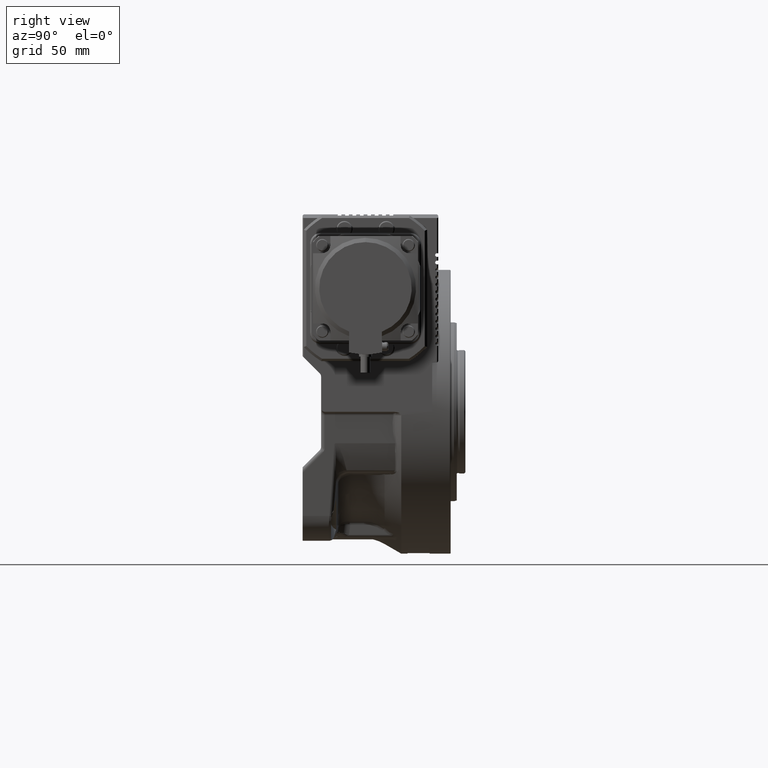
[diagram: clean part render]
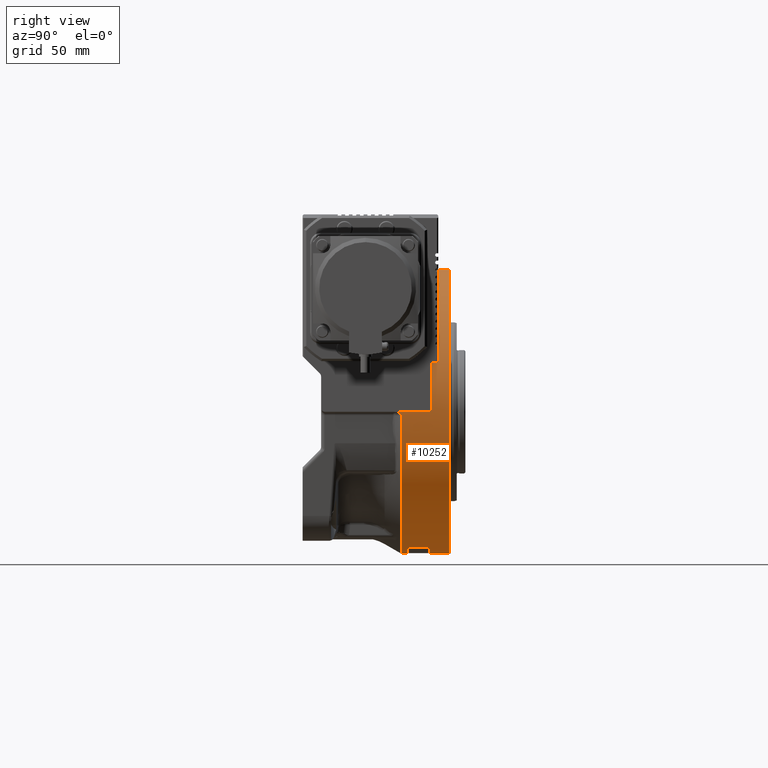
[diagram: same view with one face highlighted and labeled with its STEP entity id]
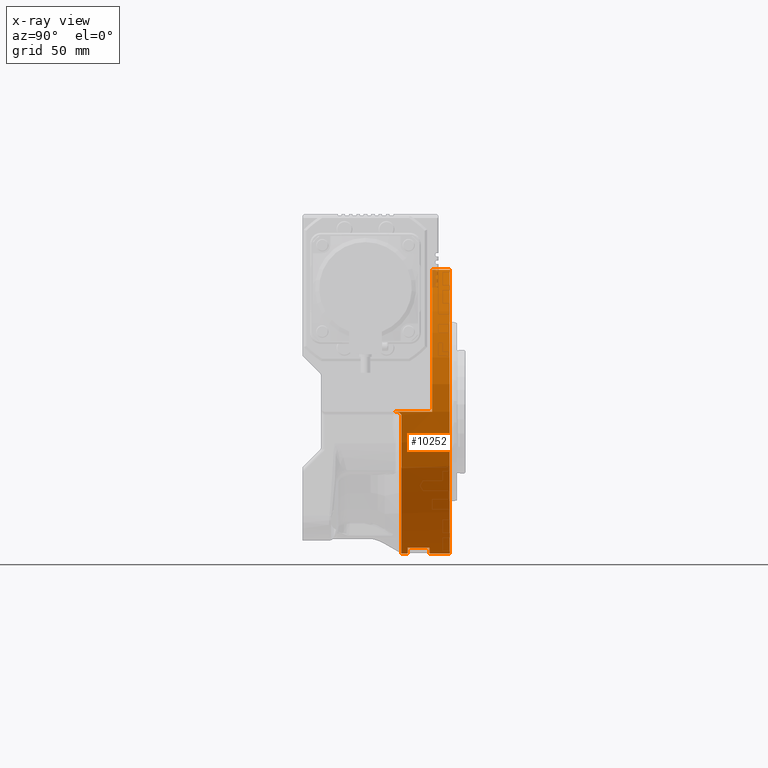
[diagram: x-ray of the same camera — body ghosted, the highlighted face saturated]
A machine part, right view. The second image highlights one B-rep face of the part: STEP entity #10252.
The next image is the same camera in x-ray: the body ghosted, the highlighted face saturated — about 1% of this face is hidden behind the body in this view.
In plain terms, the highlighted cylindrical surface (partial cylindrical patch) has radius 115 mm, axis along (0, 1, 0).
Its self-contained STEP definition (entity closure, byte-faithful):
#1220 = CARTESIAN_POINT ( 'NONE',  ( 114.9999275339971234, 24.80868549263489697, -0.1291300344715314574 ) ) ;
#1252 = CARTESIAN_POINT ( 'NONE',  ( 0.000000000000000000, 29.00000000000000000, 0.000000000000000000 ) ) ;
#1585 = DIRECTION ( 'NONE',  ( 0.000000000000000000, -1.000000000000000000, 0.000000000000000000 ) ) ;
#1642 = CARTESIAN_POINT ( 'NONE',  ( 114.9917705809030366, 28.09699931490313674, -1.375828423274158441 ) ) ;
#2494 = CARTESIAN_POINT ( 'NONE',  ( 114.9900208604516365, 28.27243824454428633, -1.518573705160049858 ) ) ;
#2855 = CIRCLE ( 'NONE', #77876, 115.0000000000000000 ) ;
#3755 = DIRECTION ( 'NONE',  ( 8.881784197001250351E-16, 0.000000000000000000, 1.000000000000000000 ) ) ;
#7158 = VERTEX_POINT ( 'NONE', #79390 ) ;
#7228 = CARTESIAN_POINT ( 'NONE',  ( -1.896133584952655067E-13, 52.00000000000000000, 1.877717866360475099E-15 ) ) ;
#7948 = ORIENTED_EDGE ( 'NONE', *, *, #75021, .T. ) ;
#8186 = CARTESIAN_POINT ( 'NONE',  ( 0.000000000000000000, 54.00000000000000000, 0.000000000000000000 ) ) ;
#8199 = CARTESIAN_POINT ( 'NONE',  ( 114.9998642314695445, 25.15786009822274494, -0.1832626952012586519 ) ) ;
#8609 = CARTESIAN_POINT ( 'NONE',  ( 114.9994668502941977, 25.89205429790269264, -0.3520355174097362094 ) ) ;
#9025 = CARTESIAN_POINT ( 'NONE',  ( 114.9956525597421546, 27.54085925575986238, -1.002720122626485688 ) ) ;
#9451 = CARTESIAN_POINT ( 'NONE',  ( 114.9946028565829153, 27.73989547257291477, -1.119329705294657806 ) ) ;
#9459 = ORIENTED_EDGE ( 'NONE', *, *, #17634, .T. ) ;
#9668 = EDGE_CURVE ( 'NONE', #54556, #10898, #13548, .T. ) ;
#9703 = VECTOR ( 'NONE', #14752, 1000.000000000000000 ) ;
#9787 = CARTESIAN_POINT ( 'NONE',  ( -1.915261329192304893E-13, 34.00000000000000000, 8.302670301599750378E-15 ) ) ;
#9883 = CARTESIAN_POINT ( 'NONE',  ( 115.0000016434536150, 23.67035120397557790, -0.01122488868556218398 ) ) ;
#10252 = ADVANCED_FACE ( 'NONE', ( #67273 ), #33372, .T. ) ;
#10369 = ORIENTED_EDGE ( 'NONE', *, *, #26696, .T. ) ;
#10390 = ORIENTED_EDGE ( 'NONE', *, *, #9668, .F. ) ;
#10898 = VERTEX_POINT ( 'NONE', #73602 ) ;
#11191 = CARTESIAN_POINT ( 'NONE',  ( 115.0000000000000000, 23.06776437421590131, 0.000000000000000000 ) ) ;
#13548 = CIRCLE ( 'NONE', #53841, 115.0000000000000000 ) ;
#14695 = CARTESIAN_POINT ( 'NONE',  ( 114.9971202071243539, 27.17475039052024499, -0.8149236201228353682 ) ) ;
#14752 = DIRECTION ( 'NONE',  ( 0.000000000000000000, 1.000000000000000000, 0.000000000000000000 ) ) ;
#15142 = CARTESIAN_POINT ( 'NONE',  ( 114.9963293345299178, 27.38193080818751568, -0.9188723445971186399 ) ) ;
#15240 = CARTESIAN_POINT ( 'NONE',  ( 1.408343819019454046E-14, 52.00000000000000000, -115.0000000000000000 ) ) ;
#15560 = CARTESIAN_POINT ( 'NONE',  ( 114.9999917827316978, 24.11462769120914729, -0.04489955185535822457 ) ) ;
#15971 = CARTESIAN_POINT ( 'NONE',  ( 114.9813512699077336, 28.73913290657947428, -2.070974538470678805 ) ) ;
#16396 = CARTESIAN_POINT ( 'NONE',  ( 114.9814583607447105, 28.73541576566718092, -2.065014909322182568 ) ) ;
#17634 = EDGE_CURVE ( 'NONE', #42257, #64277, #22173, .T. ) ;
#19703 = DIRECTION ( 'NONE',  ( 0.000000000000000000, -1.000000000000000000, 0.000000000000000000 ) ) ;
#19893 = ORIENTED_EDGE ( 'NONE', *, *, #58931, .T. ) ;
#19922 = LINE ( 'NONE', #39492, #69057 ) ;
#20304 = CARTESIAN_POINT ( 'NONE',  ( 0.000000000000000000, 55.00000000000000000, 0.000000000000000000 ) ) ;
#20351 = DIRECTION ( 'NONE',  ( 1.062652457758361879E-16, 1.000000000000000000, -3.569418019577375155E-16 ) ) ;
#20611 = AXIS2_PLACEMENT_3D ( 'NONE', #20304, #61623, #46842 ) ;
#21637 = CARTESIAN_POINT ( 'NONE',  ( 114.9987114792780574, 26.51155513196366442, -0.5444198292347696144 ) ) ;
#22082 = CARTESIAN_POINT ( 'NONE',  ( 114.9999420415806526, 24.71808371466553211, -0.1156689458843403878 ) ) ;
#22173 = LINE ( 'NONE', #36913, #27069 ) ;
#22488 = CARTESIAN_POINT ( 'NONE',  ( 114.9821090193140236, 28.71223618095029551, -2.028540534487333513 ) ) ;
#22906 = CARTESIAN_POINT ( 'NONE',  ( 114.9914419176345888, 28.13085810421661037, -1.402966588517368329 ) ) ;
#23442 = DIRECTION ( 'NONE',  ( 0.000000000000000000, 1.000000000000000000, 0.000000000000000000 ) ) ;
#24586 = ORIENTED_EDGE ( 'NONE', *, *, #74286, .F. ) ;
#26696 = EDGE_CURVE ( 'NONE', #62513, #84732, #53902, .T. ) ;
#27000 = CARTESIAN_POINT ( 'NONE',  ( 115.0000000000000000, 54.00000000000000000, -1.741031561343995111E-14 ) ) ;
#27069 = VECTOR ( 'NONE', #23442, 1000.000000000000000 ) ;
#27755 = CARTESIAN_POINT ( 'NONE',  ( 114.9913886467529522, 28.13624978625454887, -1.407330777721342852 ) ) ;
#28108 = DIRECTION ( 'NONE',  ( 0.000000000000000000, 0.000000000000000000, -1.000000000000000000 ) ) ;
#28593 = CARTESIAN_POINT ( 'NONE',  ( 114.9997645457651316, 25.45877981379495480, -0.2436674953311029068 ) ) ;
#29030 = CARTESIAN_POINT ( 'NONE',  ( 115.0000000000000000, 23.06776437421590131, 0.000000000000000000 ) ) ;
#29103 = ORIENTED_EDGE ( 'NONE', *, *, #73874, .T. ) ;
#29439 = CARTESIAN_POINT ( 'NONE',  ( 114.9967045129142349, 27.28840332434917215, -0.8708679105104036866 ) ) ;
#29797 = ORIENTED_EDGE ( 'NONE', *, *, #58831, .T. ) ;
#30238 = VECTOR ( 'NONE', #61273, 1000.000000000000000 ) ;
#33246 = AXIS2_PLACEMENT_3D ( 'NONE', #1252, #69055, #76012 ) ;
#33372 = CYLINDRICAL_SURFACE ( 'NONE', #20611, 115.0000000000000000 ) ;
#34713 = CARTESIAN_POINT ( 'NONE',  ( 114.9965152912755570, 27.33631884590646877, -0.8952865028953578275 ) ) ;
#35128 = CARTESIAN_POINT ( 'NONE',  ( 114.9986296085963176, 26.55944158783998077, -0.5614563386237237941 ) ) ;
#35545 = CARTESIAN_POINT ( 'NONE',  ( 114.9930690798004349, 27.94958472727548582, -1.263795285210995489 ) ) ;
#35982 = CARTESIAN_POINT ( 'NONE',  ( 114.9829983175777244, 28.67847647214546924, -1.977767501732348832 ) ) ;
#35995 = CARTESIAN_POINT ( 'NONE',  ( 1.408343819019455781E-14, 29.00000000000000000, -115.0000000000000000 ) ) ;
#36913 = CARTESIAN_POINT ( 'NONE',  ( 1.408343819019455781E-14, 55.00000000000000000, -115.0000000000000000 ) ) ;
#38012 = CARTESIAN_POINT ( 'NONE',  ( 115.0000000000000000, 59.00000000000000000, 0.000000000000000000 ) ) ;
#39492 = CARTESIAN_POINT ( 'NONE',  ( 32.52702708006000165, 34.00000000000000000, -110.3040910815780080 ) ) ;
#41217 = CARTESIAN_POINT ( 'NONE',  ( 114.9989734530902581, 26.34370708912819126, -0.4868248634215697201 ) ) ;
#42068 = CARTESIAN_POINT ( 'NONE',  ( 114.9847018309115754, 28.60633955970806142, -1.877248864561903430 ) ) ;
#42257 = VERTEX_POINT ( 'NONE', #15240 ) ;
#42481 = CARTESIAN_POINT ( 'NONE',  ( 114.9999591030426700, 24.59092456836424034, -0.09786698287737879975 ) ) ;
#42710 = DIRECTION ( 'NONE',  ( -1.062652457758361879E-16, -1.000000000000000000, 3.620292471603770148E-16 ) ) ;
#42909 = CARTESIAN_POINT ( 'NONE',  ( 114.9761695630407843, 28.91481890827085621, -2.357463667445496736 ) ) ;
#45156 = CARTESIAN_POINT ( 'NONE',  ( 114.9625733810223949, 29.00000000000000000, -2.933721461394899865 ) ) ;
#45708 = CIRCLE ( 'NONE', #33246, 115.0000000000000000 ) ;
#45838 = LINE ( 'NONE', #38012, #47882 ) ;
#46842 = DIRECTION ( 'NONE',  ( 0.000000000000000000, 0.000000000000000000, 1.000000000000000000 ) ) ;
#47784 = EDGE_CURVE ( 'NONE', #10898, #7158, #74334, .T. ) ;
#47882 = VECTOR ( 'NONE', #74093, 1000.000000000000000 ) ;
#48226 = CARTESIAN_POINT ( 'NONE',  ( 0.000000000000000000, 55.00000000000000000, 115.0000000000000000 ) ) ;
#49017 = CARTESIAN_POINT ( 'NONE',  ( 114.9978534621346427, 26.94004432208153332, -0.7071648076490903989 ) ) ;
#51100 = AXIS2_PLACEMENT_3D ( 'NONE', #9787, #70640, #56304 ) ;
#51177 = AXIS2_PLACEMENT_3D ( 'NONE', #7228, #42710, #73759 ) ;
#52763 = EDGE_LOOP ( 'NONE', ( #7948, #29103, #10369, #29797, #24586, #9459, #52813, #66390, #10390, #77805, #19893 ) ) ;
#52813 = ORIENTED_EDGE ( 'NONE', *, *, #63132, .T. ) ;
#53841 = AXIS2_PLACEMENT_3D ( 'NONE', #8186, #19703, #3755 ) ;
#53902 = CIRCLE ( 'NONE', #51100, 115.0000000000000000 ) ;
#54276 = CARTESIAN_POINT ( 'NONE',  ( 114.9625733810223949, 29.00000000000000000, -2.933721461394899865 ) ) ;
#54556 = VERTEX_POINT ( 'NONE', #27000 ) ;
#55908 = EDGE_CURVE ( 'NONE', #54556, #65586, #45838, .T. ) ;
#55982 = CARTESIAN_POINT ( 'NONE',  ( 114.9963866215403954, 27.36808633168796945, -0.9116638898389561874 ) ) ;
#56304 = DIRECTION ( 'NONE',  ( -5.551115123125792563E-17, -3.620292471603771135E-16, -1.000000000000000000 ) ) ;
#58831 = EDGE_CURVE ( 'NONE', #84732, #61642, #19922, .T. ) ;
#58931 = EDGE_CURVE ( 'NONE', #65586, #65405, #83623, .T. ) ;
#61273 = DIRECTION ( 'NONE',  ( 0.000000000000000000, 1.000000000000000000, 0.000000000000000000 ) ) ;
#61623 = DIRECTION ( 'NONE',  ( 0.000000000000000000, 1.000000000000000000, 0.000000000000000000 ) ) ;
#61642 = VERTEX_POINT ( 'NONE', #75683 ) ;
#62097 = CARTESIAN_POINT ( 'NONE',  ( 114.9986549832419342, 26.54483241877723998, -0.5562255747370440373 ) ) ;
#62358 = CARTESIAN_POINT ( 'NONE',  ( 1.408343819019454046E-14, 34.00000000000000000, -115.0000000000000000 ) ) ;
#62513 = VERTEX_POINT ( 'NONE', #62358 ) ;
#62527 = CARTESIAN_POINT ( 'NONE',  ( 115.0000000000000142, 23.37076081911490988, 1.857870772735106208E-13 ) ) ;
#63132 = EDGE_CURVE ( 'NONE', #64277, #7158, #2855, .T. ) ;
#64277 = VERTEX_POINT ( 'NONE', #83018 ) ;
#65405 = VERTEX_POINT ( 'NONE', #45156 ) ;
#65586 = VERTEX_POINT ( 'NONE', #11191 ) ;
#66390 = ORIENTED_EDGE ( 'NONE', *, *, #47784, .F. ) ;
#67273 = FACE_OUTER_BOUND ( 'NONE', #52763, .T. ) ;
#68186 = CARTESIAN_POINT ( 'NONE',  ( 114.9999833086737056, 24.33548866231156893, -0.06594621594173480372 ) ) ;
#69021 = CARTESIAN_POINT ( 'NONE',  ( 114.9999335105741238, 24.77246074735359116, -0.1236929825322883453 ) ) ;
#69037 = CARTESIAN_POINT ( 'NONE',  ( 1.408343819019455781E-14, 55.00000000000000000, -115.0000000000000000 ) ) ;
#69055 = DIRECTION ( 'NONE',  ( 0.000000000000000000, 1.000000000000000000, 0.000000000000000000 ) ) ;
#69057 = VECTOR ( 'NONE', #20351, 1000.000000000000000 ) ;
#69460 = CARTESIAN_POINT ( 'NONE',  ( 114.9700138216251446, 29.00000000000000000, -2.642155881621982783 ) ) ;
#70640 = DIRECTION ( 'NONE',  ( -1.062652457758361879E-16, -1.000000000000000000, 3.620292471603770148E-16 ) ) ;
#73602 = CARTESIAN_POINT ( 'NONE',  ( 0.000000000000000000, 54.00000000000000000, 115.0000000000000000 ) ) ;
#73759 = DIRECTION ( 'NONE',  ( -5.551115123125792563E-17, -3.620292471603771135E-16, -1.000000000000000000 ) ) ;
#73874 = EDGE_CURVE ( 'NONE', #73896, #62513, #75160, .T. ) ;
#73896 = VERTEX_POINT ( 'NONE', #35995 ) ;
#74093 = DIRECTION ( 'NONE',  ( 0.000000000000000000, -1.000000000000000000, 0.000000000000000000 ) ) ;
#74286 = EDGE_CURVE ( 'NONE', #42257, #61642, #85906, .T. ) ;
#74334 = LINE ( 'NONE', #48226, #9703 ) ;
#74717 = CARTESIAN_POINT ( 'NONE',  ( 114.9999246694052317, 24.82530846220810972, -0.1316633734328579719 ) ) ;
#75021 = EDGE_CURVE ( 'NONE', #65405, #73896, #45708, .T. ) ;
#75145 = CARTESIAN_POINT ( 'NONE',  ( 114.9987941957568580, 26.46149775573355001, -0.5268499617709395677 ) ) ;
#75160 = LINE ( 'NONE', #69037, #30238 ) ;
#75555 = CARTESIAN_POINT ( 'NONE',  ( 114.9817197218393829, 28.72620989599226249, -2.050410482751339192 ) ) ;
#75683 = CARTESIAN_POINT ( 'NONE',  ( 32.52702708006000165, 52.00000000000000000, -110.3040910815780080 ) ) ;
#75982 = CARTESIAN_POINT ( 'NONE',  ( 114.9992804465044287, 26.10416526764391065, -0.4106597293021057027 ) ) ;
#76012 = DIRECTION ( 'NONE',  ( 0.000000000000000000, 0.000000000000000000, 1.000000000000000000 ) ) ;
#77805 = ORIENTED_EDGE ( 'NONE', *, *, #55908, .T. ) ;
#77876 = AXIS2_PLACEMENT_3D ( 'NONE', #80775, #1585, #28108 ) ;
#79390 = CARTESIAN_POINT ( 'NONE',  ( 0.000000000000000000, 68.20000000000000284, 115.0000000000000000 ) ) ;
#80268 = CARTESIAN_POINT ( 'NONE',  ( 32.52702708006000165, 34.00000000000000000, -110.3040910815780080 ) ) ;
#80775 = CARTESIAN_POINT ( 'NONE',  ( 0.000000000000000000, 68.20000000000000284, 0.000000000000000000 ) ) ;
#80831 = CARTESIAN_POINT ( 'NONE',  ( 114.9922180243732299, 28.04879943839860701, -1.338133201851470222 ) ) ;
#81693 = CARTESIAN_POINT ( 'NONE',  ( 114.9983310756008734, 26.72618163350965048, -0.6218799287176680624 ) ) ;
#82116 = CARTESIAN_POINT ( 'NONE',  ( 114.9878177614315007, 28.44359575552228492, -1.680321629267844452 ) ) ;
#82521 = CARTESIAN_POINT ( 'NONE',  ( 114.9915740281592917, 28.11735480217856420, -1.392096286751457912 ) ) ;
#83018 = CARTESIAN_POINT ( 'NONE',  ( 1.408343819019455781E-14, 68.20000000000000284, -115.0000000000000000 ) ) ;
#83623 = B_SPLINE_CURVE_WITH_KNOTS ( 'NONE', 3,
 ( #29030, #62527, #9883, #15560, #68186, #42481, #22082, #69021, #1220, #74717, #8199, #28593, #8609, #75982, #41217, #75145, #21637, #62097, #35128, #81693, #49017, #14695, #29439, #34713, #55982, #15142, #9025, #9451, #35545, #80831, #1642, #82521, #22906, #27755, #2494, #82116, #42068, #35982, #22488, #75555, #16396, #15971, #42909, #69460, #54276 ),
 .UNSPECIFIED., .F., .F.,
 ( 4, 2, 1, 1, 1, 2, 2, 2, 1, 1, 1, 2, 2, 1, 1, 1, 2, 2, 1, 1, 1, 1, 2, 2, 1, 1, 1, 1, 2, 2, 4 ),
 ( 0.000000000000000000, 0.1250000000000051903, 0.1875000000000077716, 0.2187500000000090761, 0.2343750000000097422, 0.2421875000000093259, 0.2500000000000089373, 0.3750000000000023870, 0.4374999999999983902, 0.4687499999999964473, 0.4843749999999961142, 0.4921874999999967248, 0.4999999999999973355, 0.5625000000000046629, 0.5937500000000076605, 0.6093750000000098810, 0.6171875000000103251, 0.6250000000000107692, 0.6875000000000101030, 0.7187500000000092149, 0.7343750000000087708, 0.7421875000000078826, 0.7460937500000074385, 0.7500000000000069944, 0.8125000000000031086, 0.8437500000000011102, 0.8593749999999995559, 0.8671874999999992228, 0.8710937499999995559, 0.8749999999999997780, 1.000000000000000000 ),
 .UNSPECIFIED. ) ;
#84732 = VERTEX_POINT ( 'NONE', #80268 ) ;
#85906 = CIRCLE ( 'NONE', #51177, 115.0000000000000000 ) ;